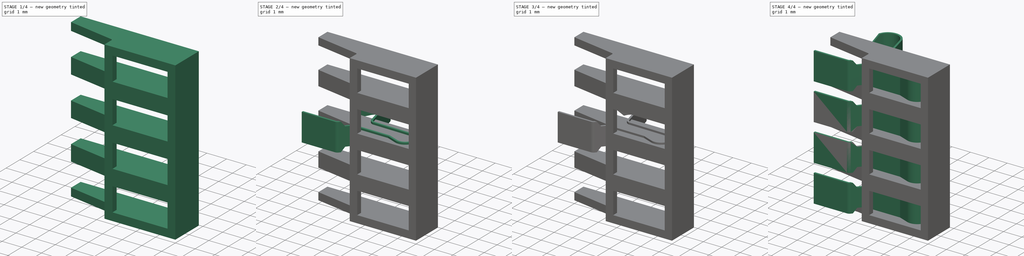
[diagram: build sequence overview — one tinted view per stage of 4, left to right]
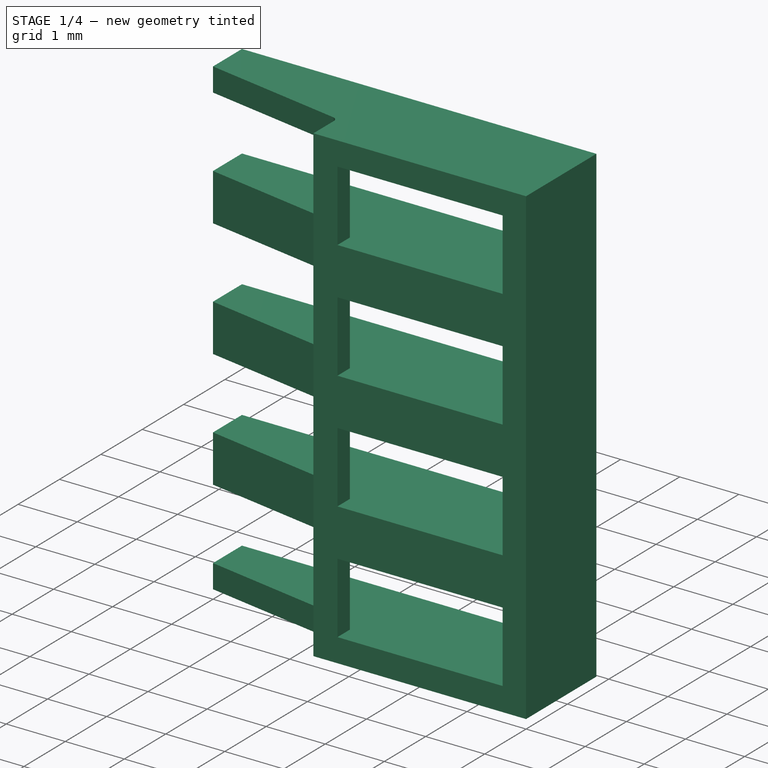
[diagram: stage 1 of 4 — iso view after this stage's code; geometry added in this stage tinted green]
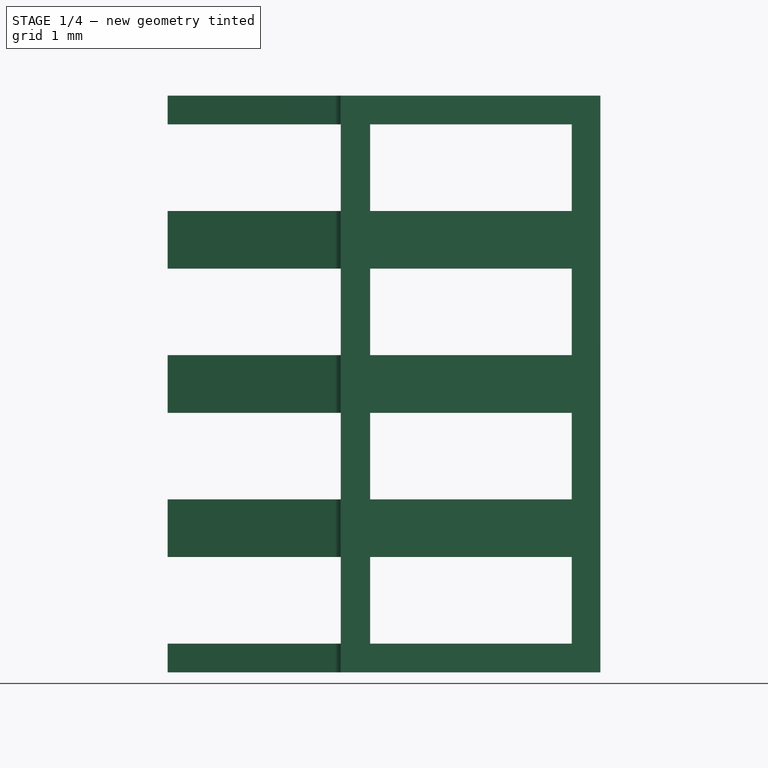
[diagram: stage 1 of 4 — front view after this stage's code; geometry added in this stage tinted green]
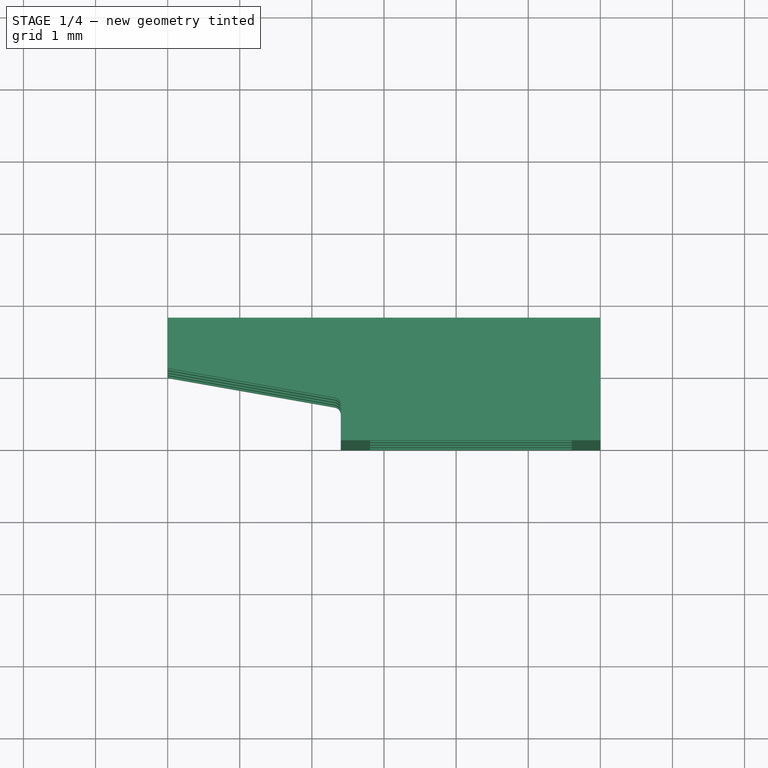
[diagram: stage 1 of 4 — top view after this stage's code; geometry added in this stage tinted green]
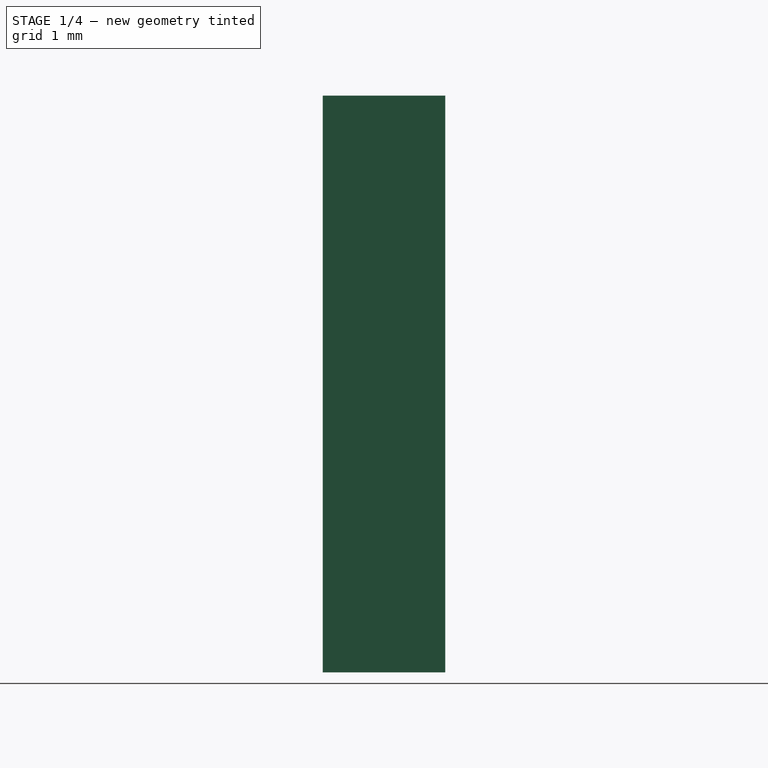
[diagram: stage 1 of 4 — right view after this stage's code; geometry added in this stage tinted green]
FCSTD DOCUMENT  (FreeCAD 1.0R38641 +468 (Git))
Label: SMT-CONN-BATTERY
License: All rights reserved
LicenseURL: http://en.wikipedia.org/wiki/All_rights_reserved
objects: Sketcher::SketchObject×6, PartDesign::Body×5, PartDesign::Pocket×3, PartDesign::FeatureBase×3, PartDesign::Pad×2, PartDesign::FeaturePython×1, PartDesign::Chamfer×1, PartDesign::Boolean×1
note: 45 computed .brp shape members not serialized (recipe doc carries the construction recipe); baked Part::Feature solids carry a one-line shape summary decoded from their .brp

FEATURE [Sketcher::SketchObject] Sketch
  ArcFitTolerance = 0
  AttachmentSupport = -> [XY_Plane]
  FullyConstrained = true
  MakeInternals = false
  MapMode = 5
  sketch-geometry (7):
    g0: LineSegment StartX=0 StartY=1.7 StartZ=0 EndX=6 EndY=1.7 EndZ=0
    g1: LineSegment StartX=6 StartY=1.7 StartZ=0 EndX=6 EndY=0 EndZ=0
    g2: LineSegment StartX=6 StartY=0 StartZ=0 EndX=2.4 EndY=0 EndZ=0
    g3: LineSegment StartX=2.4 StartY=0 StartZ=0 EndX=2.4 EndY=0.492905 EndZ=0
    g4: LineSegment StartX=2.31736 StartY=0.591386 StartZ=0 EndX=0 EndY=1 EndZ=0
    g5: LineSegment StartX=0 StartY=1 StartZ=0 EndX=0 EndY=1.7 EndZ=0
    g6: ArcOfCircle CenterX=2.3 CenterY=0.492905 CenterZ=0 NormalX=0 NormalY=0 NormalZ=1 AngleXU=0 Radius=0.1 StartAngle=1e-16 EndAngle=1.39626
  constraints (20):
    c: PointOnObject(g0,g-2)
    c: Horizontal(g0)
    c: Coincident(g0,g1)
    c: PointOnObject(g1,g-1)
    c: Vertical(g1)
    c: Coincident(g1,g2)
    c: Coincident(g2,g3)
    c: Vertical(g3)
    c: PointOnObject(g4,g-2)
    c: Coincident(g4,g5)
    c: Coincident(g5,g0)
    c: PointOnObject(g2,g-1)
    c: DistanceY(g1,g1) = 1.7
    c: DistanceX(g0,g0) = 6
    c: DistanceX(g2,g2) = 3.6
    c: Tangent(g3,g6) = -1.5708
    c: Tangent(g4,g6) = -1.5708
    c: Radius(g6) = 0.1
    c: DistanceY(g5,g5) = 0.7
    c: Angle(g4,g0) = 0.174533
FEATURE [PartDesign::Pad] Pad
  Direction = (0,0,1)
  Length = 8
  Length2 = 10
  Midplane = true
  Profile = -> Sketch
  ReferenceAxis = -> Sketch [N_Axis]
  Suppressed = false
  Type = 0
FEATURE [Sketcher::SketchObject] Sketch001
  ArcFitTolerance = 0
  AttachmentSupport = -> [XZ_Plane]
  FullyConstrained = false
  MakeInternals = false
  MapMode = 5
  Placement = pos=(0,0,0) rot=(1,0,0;1.5708rad)
  sketch-geometry (24):
    g0: LineSegment StartX=2.80704 StartY=3.6 StartZ=0 EndX=5.60429 EndY=3.6 EndZ=0
    g1: LineSegment StartX=5.60429 StartY=3.6 StartZ=0 EndX=5.60429 EndY=2.4 EndZ=0
    g2: LineSegment StartX=5.60429 StartY=2.4 StartZ=0 EndX=2.80704 EndY=2.4 EndZ=0
    g3: LineSegment StartX=2.80704 StartY=2.4 StartZ=0 EndX=2.80704 EndY=3.6 EndZ=0
    g4: LineSegment StartX=2.80704 StartY=1.6 StartZ=0 EndX=5.60429 EndY=1.6 EndZ=0
    g5: LineSegment StartX=5.60429 StartY=1.6 StartZ=0 EndX=5.60429 EndY=0.4 EndZ=0
    g6: LineSegment StartX=5.60429 StartY=0.4 StartZ=0 EndX=2.80704 EndY=0.4 EndZ=0
    g7: LineSegment StartX=2.80704 StartY=0.4 StartZ=0 EndX=2.80704 EndY=1.6 EndZ=0
    g8: LineSegment StartX=2.80704 StartY=-0.4 StartZ=0 EndX=5.60429 EndY=-0.4 EndZ=0
    g9: LineSegment StartX=5.60429 StartY=-0.4 StartZ=0 EndX=5.60429 EndY=-1.6 EndZ=0
    g10: LineSegment StartX=5.60429 StartY=-1.6 StartZ=0 EndX=2.80704 EndY=-1.6 EndZ=0
    g11: LineSegment StartX=2.80704 StartY=-1.6 StartZ=0 EndX=2.80704 EndY=-0.4 EndZ=0
    g12: LineSegment StartX=2.80704 StartY=-2.4 StartZ=0 EndX=5.60429 EndY=-2.4 EndZ=0
    g13: LineSegment StartX=5.60429 StartY=-2.4 StartZ=0 EndX=5.60429 EndY=-3.6 EndZ=0
    g14: LineSegment StartX=5.60429 StartY=-3.6 StartZ=0 EndX=2.80704 EndY=-3.6 EndZ=0
    g15: LineSegment StartX=2.80704 StartY=-3.6 StartZ=0 EndX=2.80704 EndY=-2.4 EndZ=0
    g16: LineSegment [constr] StartX=2.80704 StartY=-0.4 StartZ=0 EndX=2.80704 EndY=0 EndZ=0
    g17: LineSegment [constr] StartX=2.80704 StartY=0.4 StartZ=0 EndX=2.80704 EndY=0 EndZ=0
    g18: LineSegment [constr] StartX=2.80704 StartY=1.6 StartZ=0 EndX=2.80704 EndY=2 EndZ=0
    g19: LineSegment [constr] StartX=2.80704 StartY=2 StartZ=0 EndX=2.80704 EndY=2.4 EndZ=0
    g20: LineSegment [constr] StartX=2.80704 StartY=-2.4 StartZ=0 EndX=2.80704 EndY=-2 EndZ=0
    g21: LineSegment [constr] StartX=2.80704 StartY=-2 StartZ=0 EndX=2.80704 EndY=-1.6 EndZ=0
    g22: LineSegment [constr] StartX=2.80704 StartY=3.6 StartZ=0 EndX=2.80704 EndY=4 EndZ=0
    g23: LineSegment [constr] StartX=2.80704 StartY=-3.6 StartZ=0 EndX=2.80704 EndY=-4 EndZ=0
  constraints (67):
    c: Coincident(g0,g1)
    c: Coincident(g1,g2)
    c: Coincident(g2,g3)
    c: Coincident(g3,g0)
    c: Horizontal(g0)
    c: Horizontal(g2)
    c: Vertical(g1)
    c: Vertical(g3)
    c: Coincident(g4,g5)
    c: Coincident(g5,g6)
    c: Coincident(g6,g7)
    c: Coincident(g7,g4)
    c: Horizontal(g4)
    c: Horizontal(g6)
    c: Vertical(g5)
    c: Vertical(g7)
    c: Coincident(g8,g9)
    c: Coincident(g9,g10)
    c: Coincident(g10,g11)
    c: Coincident(g11,g8)
    c: Horizontal(g8)
    c: Horizontal(g10)
    c: Vertical(g9)
    c: Vertical(g11)
    c: Coincident(g12,g13)
    c: Coincident(g13,g14)
    c: Coincident(g14,g15)
    c: Coincident(g15,g12)
    c: Horizontal(g12)
    c: Horizontal(g14)
    c: Vertical(g13)
    c: Vertical(g15)
    c: Equal(g13,g9)
    c: Equal(g9,g5)
    c: Equal(g5,g1)
    c: Equal(g2,g6)
    c: Equal(g6,g10)
    c: Equal(g10,g14)
    c: DistanceY(g13,g13) = 1.2
    c: Coincident(g16,g8)
    c: PointOnObject(g16,g-1)
    c: Coincident(g17,g6)
    c: Coincident(g17,g16)
    c: Vertical(g16)
    c: Vertical(g17)
    c: Coincident(g4,g18)
    c: Vertical(g18)
    c: Coincident(g18,g19)
    c: Coincident(g19,g2)
    c: Vertical(g19)
    c: Coincident(g12,g20)
    c: Vertical(g20)
    c: Coincident(g20,g21)
    c: Coincident(g21,g10)
    c: Vertical(g21)
    c: Equal(g21,g20)
    c: Equal(g20,g16)
    c: Equal(g16,g17)
    c: Equal(g17,g18)
    c: Equal(g18,g19)
    c: Coincident(g22,g0)
    c: Vertical(g22)
    c: Coincident(g23,g14)
    c: Vertical(g23)
    c: Equal(g23,g21)
    c: Equal(g21,g22)
    c: DistanceY(g23,g22) = 8
FEATURE [PartDesign::Pocket] Pocket
  BaseFeature = -> Pad
  Direction = (0,1,-2e-16)
  Length = 5
  Length2 = 5
  Profile = -> Sketch001
  ReferenceAxis = -> Sketch001 [N_Axis]
  Suppressed = false
  Type = 1
FEATURE [PartDesign::Body] Body004  label="Spring4"
  AllowCompound = false
  BaseFeature = -> Body001
  Group = -> [Clone002]
  Origin = -> Origin004
  Placement = pos=(0,0,3) rot=(0,0,1;0rad)
  Tip = -> Clone002
FEATURE [PartDesign::Pocket] Pocket001
  BaseFeature = -> Pocket
  Direction = (1,0,0)
  Length = 5
  Length2 = 5
  Profile = -> Sketch002
  ReferenceAxis = -> Sketch002 [N_Axis]
  Suppressed = false
  Type = 0
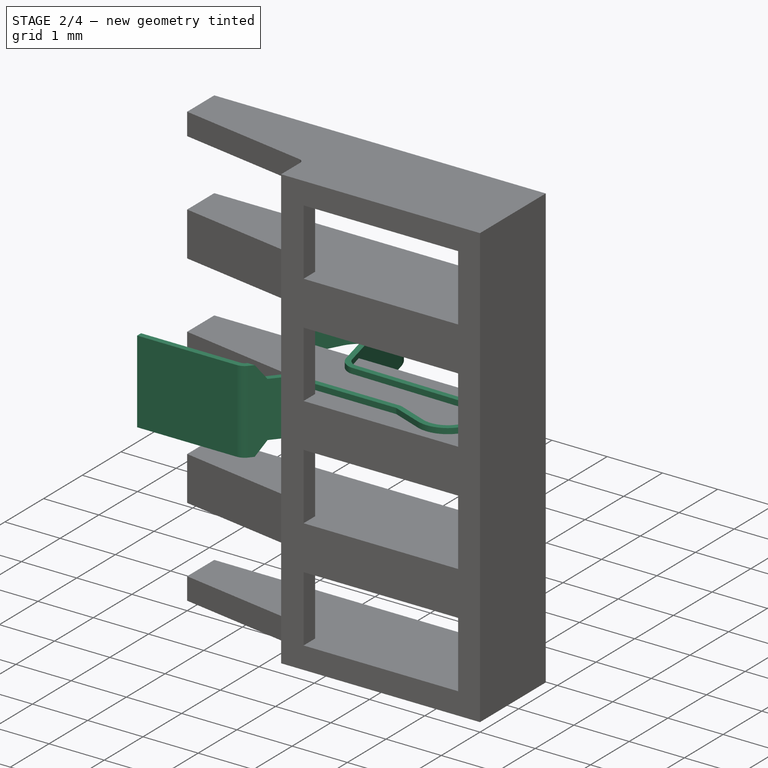
[diagram: stage 2 of 4 — iso view after this stage's code; geometry added in this stage tinted green]
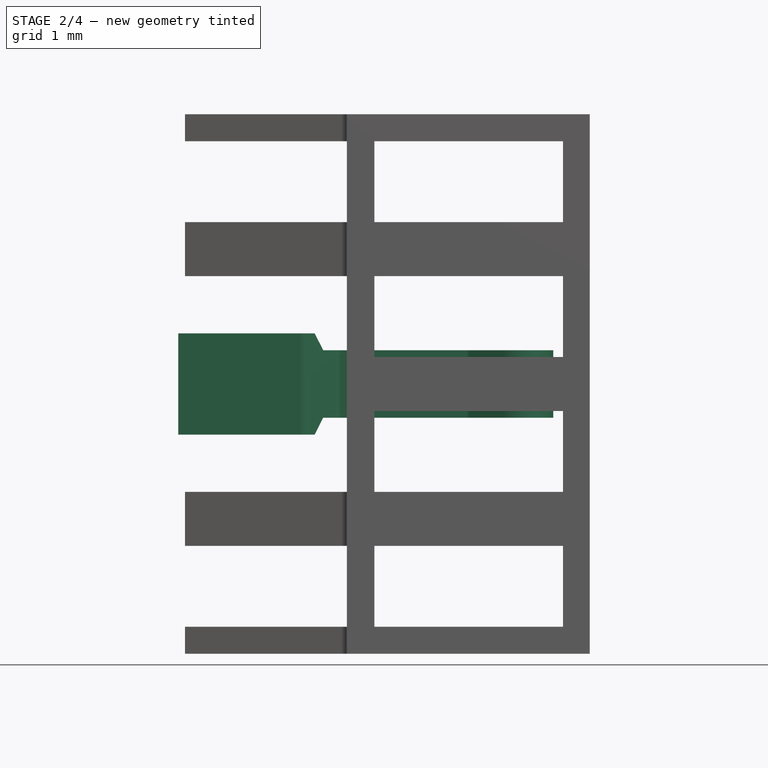
[diagram: stage 2 of 4 — front view after this stage's code; geometry added in this stage tinted green]
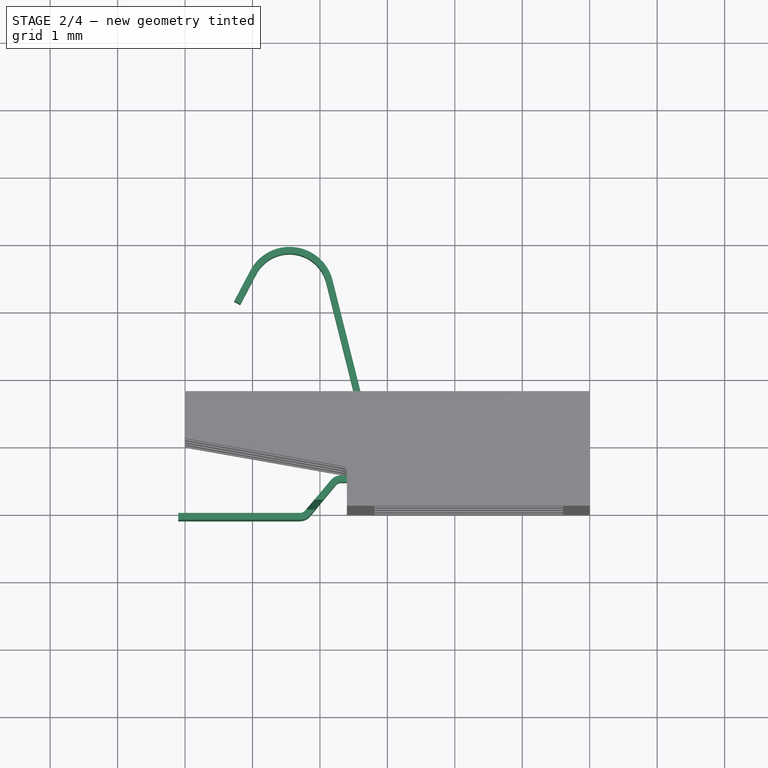
[diagram: stage 2 of 4 — top view after this stage's code; geometry added in this stage tinted green]
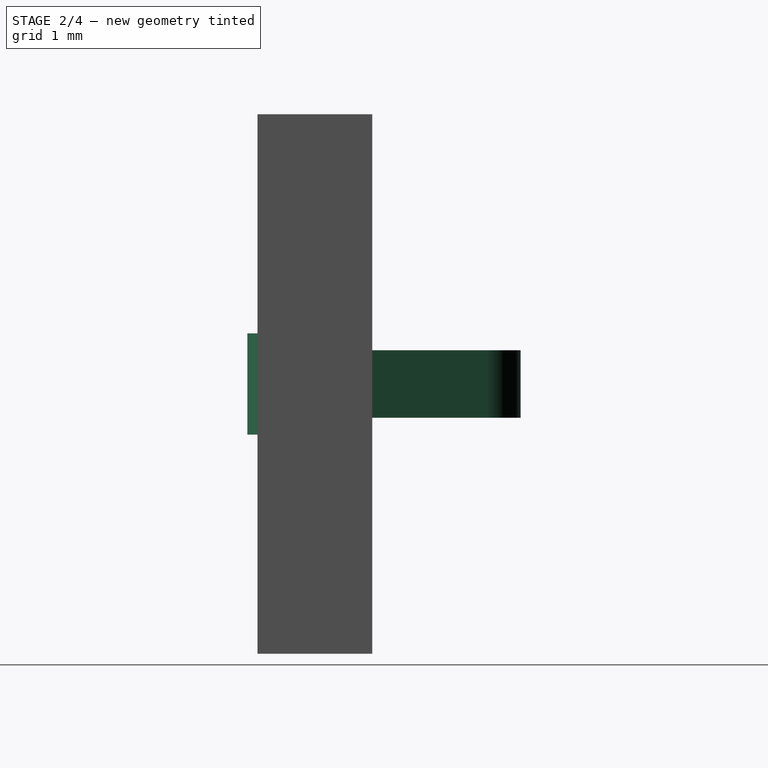
[diagram: stage 2 of 4 — right view after this stage's code; geometry added in this stage tinted green]
FEATURE [Sketcher::SketchObject] Sketch002
  ArcFitTolerance = 0
  AttachmentSupport = -> [YZ_Plane]
  FullyConstrained = true
  MakeInternals = false
  MapMode = 5
  Placement = pos=(0,0,0) rot=(0.57735,-0.57735,-0.57735;2.0944rad)
  sketch-geometry (24):
    g0: LineSegment StartX=-3.3 StartY=3.6 StartZ=0 EndX=-0.3 EndY=3.6 EndZ=0
    g1: LineSegment StartX=-0.3 StartY=3.6 StartZ=0 EndX=-0.3 EndY=2.4 EndZ=0
    g2: LineSegment StartX=-0.3 StartY=2.4 StartZ=0 EndX=-3.3 EndY=2.4 EndZ=0
    g3: LineSegment StartX=-3.3 StartY=2.4 StartZ=0 EndX=-3.3 EndY=3.6 EndZ=0
    g4: LineSegment StartX=-3.3 StartY=1.6 StartZ=0 EndX=-0.3 EndY=1.6 EndZ=0
    g5: LineSegment StartX=-0.3 StartY=1.6 StartZ=0 EndX=-0.3 EndY=0.4 EndZ=0
    g6: LineSegment StartX=-0.3 StartY=0.4 StartZ=0 EndX=-3.3 EndY=0.4 EndZ=0
    g7: LineSegment StartX=-3.3 StartY=0.4 StartZ=0 EndX=-3.3 EndY=1.6 EndZ=0
    g8: LineSegment StartX=-3.3 StartY=-0.4 StartZ=0 EndX=-0.3 EndY=-0.4 EndZ=0
    g9: LineSegment StartX=-0.3 StartY=-0.4 StartZ=0 EndX=-0.3 EndY=-1.6 EndZ=0
    g10: LineSegment StartX=-0.3 StartY=-1.6 StartZ=0 EndX=-3.3 EndY=-1.6 EndZ=0
    g11: LineSegment StartX=-3.3 StartY=-1.6 StartZ=0 EndX=-3.3 EndY=-0.4 EndZ=0
    g12: LineSegment StartX=-3.3 StartY=-2.4 StartZ=0 EndX=-0.3 EndY=-2.4 EndZ=0
    g13: LineSegment StartX=-0.3 StartY=-2.4 StartZ=0 EndX=-0.3 EndY=-3.6 EndZ=0
    g14: LineSegment StartX=-0.3 StartY=-3.6 StartZ=0 EndX=-3.3 EndY=-3.6 EndZ=0
    g15: LineSegment StartX=-3.3 StartY=-3.6 StartZ=0 EndX=-3.3 EndY=-2.4 EndZ=0
    g16: LineSegment [constr] StartX=-3.3 StartY=1.6 StartZ=0 EndX=-3.3 EndY=2 EndZ=0
    g17: LineSegment [constr] StartX=-3.3 StartY=2 StartZ=0 EndX=-3.3 EndY=2.4 EndZ=0
    g18: LineSegment [constr] StartX=-3.3 StartY=3.6 StartZ=0 EndX=-3.3 EndY=4 EndZ=0
    g19: LineSegment [constr] StartX=-3.3 StartY=0.4 StartZ=0 EndX=-3.3 EndY=0 EndZ=0
    g20: LineSegment [constr] StartX=-3.3 StartY=0 StartZ=0 EndX=-3.3 EndY=-0.4 EndZ=0
    g21: LineSegment [constr] StartX=-3.3 StartY=-3.6 StartZ=0 EndX=-3.3 EndY=-4 EndZ=0
    g22: LineSegment [constr] StartX=-3.3 StartY=-1.6 StartZ=0 EndX=-3.3 EndY=-2 EndZ=0
    g23: LineSegment [constr] StartX=-3.3 StartY=-2 StartZ=0 EndX=-3.3 EndY=-2.4 EndZ=0
  constraints (69):
    c: Coincident(g0,g1)
    c: Coincident(g1,g2)
    c: Coincident(g2,g3)
    c: Coincident(g3,g0)
    c: Horizontal(g0)
    c: Horizontal(g2)
    c: Vertical(g1)
    c: Vertical(g3)
    c: Coincident(g4,g5)
    c: Coincident(g5,g6)
    c: Coincident(g6,g7)
    c: Coincident(g7,g4)
    c: Horizontal(g4)
    c: Horizontal(g6)
    c: Vertical(g5)
    c: Vertical(g7)
    c: Coincident(g8,g9)
    c: Coincident(g9,g10)
    c: Coincident(g10,g11)
    c: Coincident(g11,g8)
    c: Horizontal(g8)
    c: Horizontal(g10)
    c: Vertical(g9)
    c: Vertical(g11)
    c: Coincident(g12,g13)
    c: Coincident(g13,g14)
    c: Coincident(g14,g15)
    c: Coincident(g15,g12)
    c: Horizontal(g12)
    c: Horizontal(g14)
    c: Vertical(g13)
    c: Vertical(g15)
    c: Coincident(g16,g4)
    c: Vertical(g16)
    c: Coincident(g17,g16)
    c: Coincident(g17,g2)
    c: Vertical(g17)
    c: Coincident(g18,g0)
    c: Vertical(g18)
    c: Coincident(g19,g6)
    c: PointOnObject(g19,g-1)
    c: Vertical(g19)
    c: Coincident(g20,g19)
    c: Vertical(g20)
    c: Coincident(g8,g20)
    c: Coincident(g21,g14)
    c: Vertical(g21)
    c: Coincident(g10,g22)
    c: Coincident(g22,g23)
    c: Coincident(g23,g12)
    c: Vertical(g23)
    c: Vertical(g22)
    c: Equal(g16,g17)
    c: Equal(g17,g18)
    c: Equal(g18,g19)
    c: Equal(g19,g20)
    c: Equal(g20,g21)
    c: Equal(g21,g22)
    c: Equal(g22,g23)
    c: Equal(g15,g11)
    c: Equal(g11,g7)
    c: Equal(g7,g3)
    c: DistanceY(g3,g3) = 1.2
    c: DistanceY(g21,g18) = 8
    c: Equal(g14,g10)
    c: Equal(g10,g6)
    c: Equal(g6,g2)
    c: DistanceX(g0,g0) = 3
    c: DistanceX(g0,g-1) = 0.3
FEATURE [Sketcher::SketchObject] Sketch003
  ArcFitTolerance = 0
  AttachmentSupport = -> [XY_Plane001]
  FullyConstrained = false
  MakeInternals = false
  MapMode = 5
  expr: Constraints[17] = 1.7 + 2.2 - 0.1
  expr: Constraints[18] = 6 - 4.45
  sketch-geometry (12):
    g0: LineSegment StartX=-0.1 StartY=-0.05 StartZ=0 EndX=1.75 EndY=-0.05 EndZ=0
    g1: LineSegment StartX=1.75 StartY=-0.05 StartZ=0 EndX=2.22052 EndY=0.512776 EndZ=0
    g2: LineSegment StartX=2.22052 StartY=0.512776 StartZ=0 EndX=4.21401 EndY=0.512776 EndZ=0
    g3: LineSegment StartX=4.21401 StartY=0.512776 StartZ=0 EndX=4.75779 EndY=0.304165 EndZ=0
    g4: ArcOfCircle CenterX=4.91632 CenterY=0.717387 CenterZ=0 NormalX=0 NormalY=0 NormalZ=1 AngleXU=0 Radius=0.442586 StartAngle=4.34607 EndAngle=7.83893
    g5: LineSegment StartX=4.92298 StartY=1.15992 StartZ=0 EndX=2.82491 EndY=1.19151 EndZ=0
    g6: ArcOfCircle CenterX=2.88221 CenterY=1.49414 CenterZ=0 NormalX=0 NormalY=0 NormalZ=1 AngleXU=0 Radius=0.308006 StartAngle=3.38751 EndAngle=4.52524
    g7: LineSegment StartX=2.58347 StartY=1.41915 StartZ=0 EndX=2.09201 EndY=3.37722 EndZ=0
    g8: LineSegment StartX=1.05581 StartY=3.50205 StartZ=0 EndX=0.81791 EndY=3.05139 EndZ=0
    g9: ArcOfCircle CenterX=1.55 CenterY=3.24118 CenterZ=0 NormalX=0 NormalY=0 NormalZ=1 AngleXU=0 Radius=0.558824 StartAngle=1.5708 EndAngle=2.65589
    g10: ArcOfCircle CenterX=1.55 CenterY=3.24118 CenterZ=0 NormalX=0 NormalY=0 NormalZ=1 AngleXU=0 Radius=0.558824 StartAngle=0.245914 EndAngle=1.5708
    g11: LineSegment [constr] StartX=1.55 StartY=3.24118 StartZ=0 EndX=1.55 EndY=3.8 EndZ=0
  constraints (21):
    c: Horizontal(g0)
    c: DistanceX(g0,g-1) = 0.1
    c: DistanceY(g0,g-1) = 0.05
    c: DistanceX(g0,g0) = 1.85
    c: Coincident(g0,g1)
    c: Coincident(g1,g2)
    c: Horizontal(g2)
    c: Coincident(g2,g3)
    c: Coincident(g6,g5)
    c: Tangent(g6,g7) = 1.5708
    c: Coincident(g10,g9)
    c: Tangent(g9,g8) = -1.5708
    c: Tangent(g10,g7) = -1.5708
    c: Coincident(g11,g9)
    c: Coincident(g11,g9)
    c: Vertical(g11)
    c: Coincident(g9,g10)
    c: DistanceY(g-1,g9) = 3.8
    c: DistanceX(g-1,g9) = 1.55
    c: Tangent(g5,g4) = -1.5708
    c: Tangent(g4,g3) = -1.5708
FEATURE [PartDesign::FeaturePython] BaseBend  # WARN: FeaturePython — macro-defined, semantics opaque (R4)
  BendSide = 0
  BendSketch = -> Sketch003
  MidPlane = true
  Reverse = false
  Suppressed = false
  length = 1.5
  radius = 0.1
  thickness = 0.1
FEATURE [Sketcher::SketchObject] Sketch004
  ArcFitTolerance = 0
  AttachmentSupport = -> [YZ_Plane001]
  FullyConstrained = false
  MakeInternals = false
  MapMode = 5
  Placement = pos=(0,0,0) rot=(0.57735,0.57735,0.57735;2.0944rad)
  sketch-geometry (12):
    g0: LineSegment StartX=0 StartY=0.75 StartZ=0 EndX=0.151585 EndY=0.5 EndZ=0
    g1: LineSegment StartX=0.151585 StartY=0.5 StartZ=0 EndX=4.5 EndY=0.5 EndZ=0
    g2: LineSegment StartX=4.5 StartY=0.5 StartZ=0 EndX=4.5 EndY=-0.5 EndZ=0
    g3: LineSegment StartX=4.5 StartY=-0.5 StartZ=0 EndX=0.151585 EndY=-0.5 EndZ=0
    g4: LineSegment StartX=0.151585 StartY=-0.5 StartZ=0 EndX=0 EndY=-0.75 EndZ=0
    g5: LineSegment StartX=0 StartY=-0.75 StartZ=0 EndX=0 EndY=-2 EndZ=0
    g6: LineSegment StartX=0 StartY=-2 StartZ=0 EndX=5 EndY=-2 EndZ=0
    g7: LineSegment StartX=5 StartY=-2 StartZ=0 EndX=5 EndY=2 EndZ=0
    g8: LineSegment StartX=5 StartY=2 StartZ=0 EndX=0 EndY=2 EndZ=0
    g9: LineSegment StartX=0 StartY=2 StartZ=0 EndX=0 EndY=0.75 EndZ=0
    g10: LineSegment [constr] StartX=0 StartY=0 StartZ=0 EndX=4.5 EndY=0.5 EndZ=0
    g11: LineSegment [constr] StartX=4.5 StartY=-0.5 StartZ=0 EndX=0 EndY=0 EndZ=0
  constraints (33):
    c: PointOnObject(g9,g-2)
    c: Coincident(g0,g1)
    c: Horizontal(g1)
    c: Coincident(g1,g2)
    c: Vertical(g2)
    c: Coincident(g2,g3)
    c: Horizontal(g3)
    c: Coincident(g3,g4)
    c: PointOnObject(g5,g-2)
    c: Coincident(g5,g6)
    c: Horizontal(g6)
    c: Coincident(g6,g7)
    c: Vertical(g7)
    c: Coincident(g7,g8)
    c: PointOnObject(g8,g-2)
    c: Horizontal(g8)
    c: Coincident(g8,g9)
    c: Equal(g5,g9)
    c: Equal(g1,g3)
    c: Coincident(g-1,g10)
    c: Coincident(g10,g1)
    c: Coincident(g2,g11)
    c: Coincident(g11,g10)
    c: Equal(g11,g10)
    c: DistanceY(g2,g2) = 1
    c: DistanceX(g10,g1) = 4.5
    c: DistanceX(g8,g8) = 5
    c: Equal(g4,g0)
    c: DistanceY(g5,g9) = 1.5
    c: DistanceY(g7,g7) = 4
    c: Coincident(g0,g9)
    c: Coincident(g5,g4)
    c: PointOnObject(g4,g-2)
FEATURE [PartDesign::Pocket] Pocket002
  BaseFeature = -> BaseBend
  Direction = (-1,0,0)
  Length = 5
  Length2 = 5
  Midplane = true
  Profile = -> Sketch004
  ReferenceAxis = -> Sketch004 [N_Axis]
  Suppressed = false
  Type = 1
FEATURE [Sketcher::SketchObject] Sketch005
  ArcFitTolerance = 0
  AttachmentSupport = -> [XY_Plane]
  FullyConstrained = true
  MakeInternals = false
  MapMode = 5
  sketch-geometry (1):
    g0: Circle CenterX=2.5 CenterY=0.46 CenterZ=0 NormalX=0 NormalY=0 NormalZ=1 AngleXU=0 Radius=0.05
  constraints (3):
    c: DistanceY(g-1,g0) = 0.46
    c: DistanceX(g-1,g0) = 2.5
    c: Diameter(g0) = 0.1
FEATURE [PartDesign::Pad] Pad001
  BaseFeature = -> Pocket001
  Direction = (0,0,1)
  Length = 8
  Length2 = 10
  Midplane = true
  Profile = -> Sketch005
  ReferenceAxis = -> Sketch005 [N_Axis]
  Refine = true
  Suppressed = false
  Type = 0
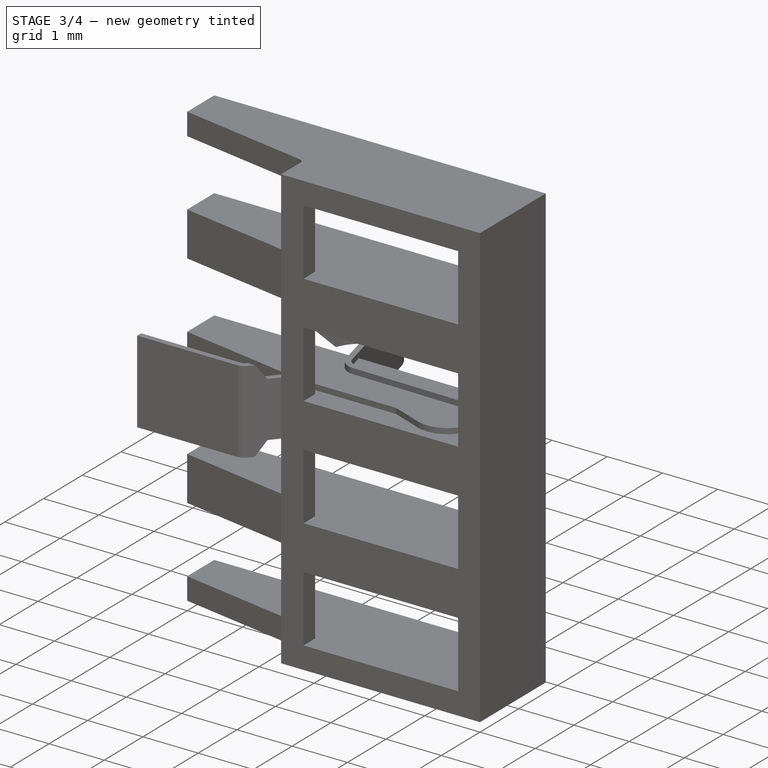
[diagram: stage 3 of 4 — iso view after this stage's code; geometry added in this stage tinted green]
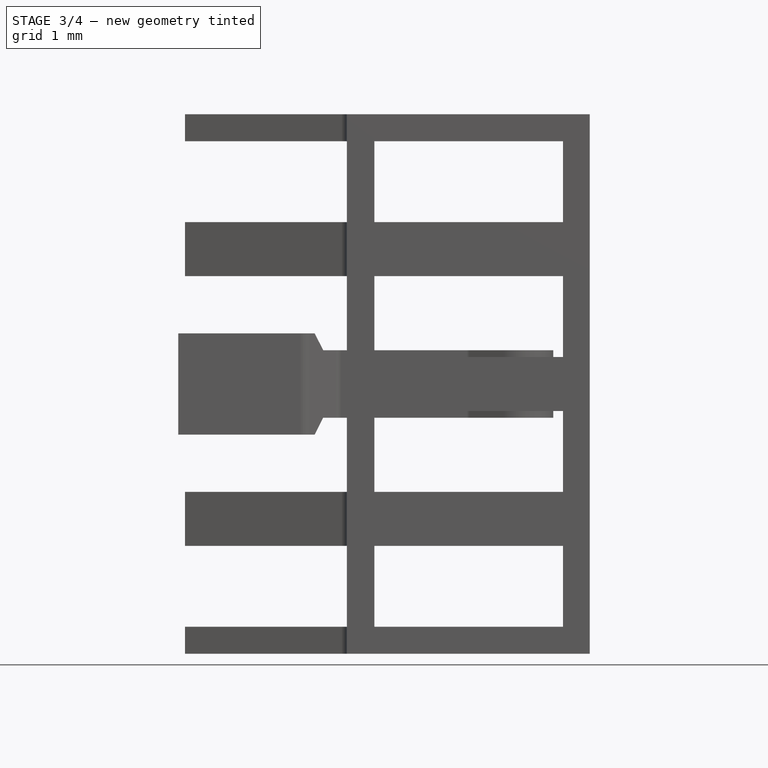
[diagram: stage 3 of 4 — front view after this stage's code; geometry added in this stage tinted green]
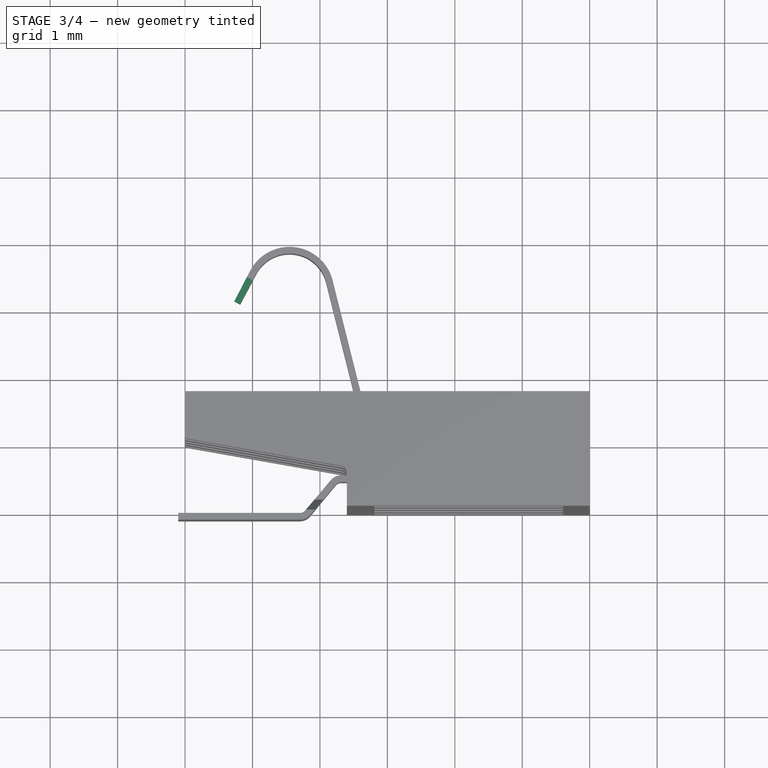
[diagram: stage 3 of 4 — top view after this stage's code; geometry added in this stage tinted green]
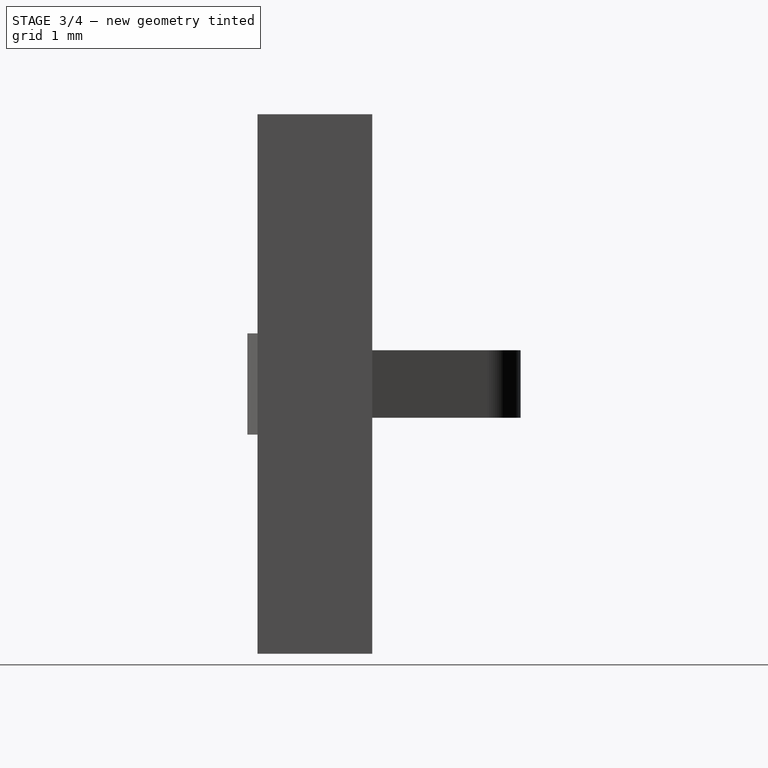
[diagram: stage 3 of 4 — right view after this stage's code; geometry added in this stage tinted green]
FEATURE [PartDesign::Chamfer] Chamfer
  Angle = 45
  Base = -> Pocket002 [Edge18,Edge33]
  BaseFeature = -> Pocket002
  ChamferType = 0
  FlipDirection = false
  Size = 0.4
  Size2 = 1
  SupportTransform = false
  Suppressed = false
  UseAllEdges = false
FEATURE [PartDesign::Body] Body003  label="Spring3"
  AllowCompound = false
  BaseFeature = -> Body001
  Group = -> [Clone001]
  Origin = -> Origin003
  Placement = pos=(0,0,1) rot=(0,0,1;0rad)
  Tip = -> Clone001
FEATURE [PartDesign::FeatureBase] Clone002
  BaseFeature = -> Body001
  Suppressed = false
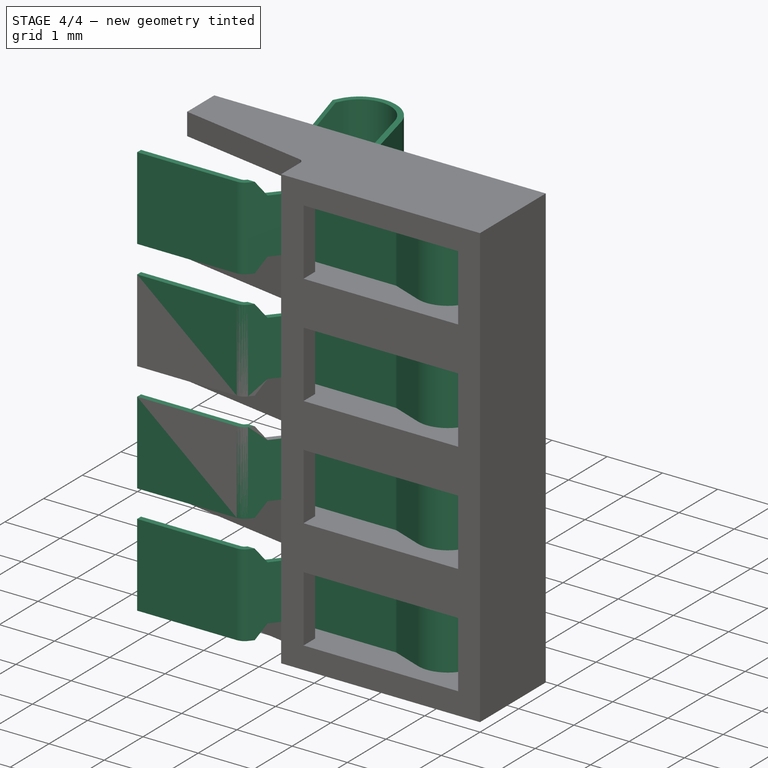
[diagram: stage 4 of 4 — iso view after this stage's code; geometry added in this stage tinted green]
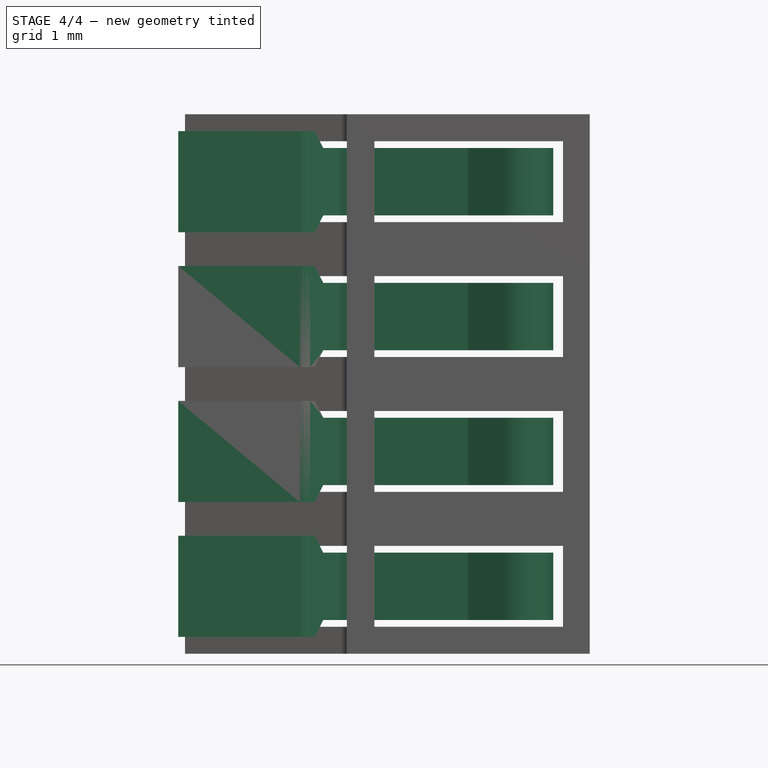
[diagram: stage 4 of 4 — front view after this stage's code; geometry added in this stage tinted green]
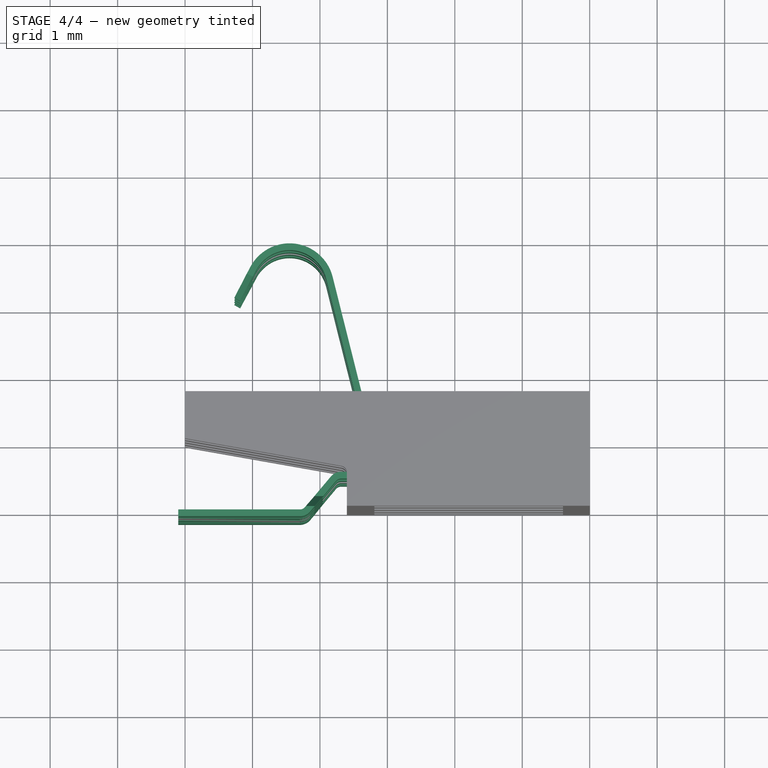
[diagram: stage 4 of 4 — top view after this stage's code; geometry added in this stage tinted green]
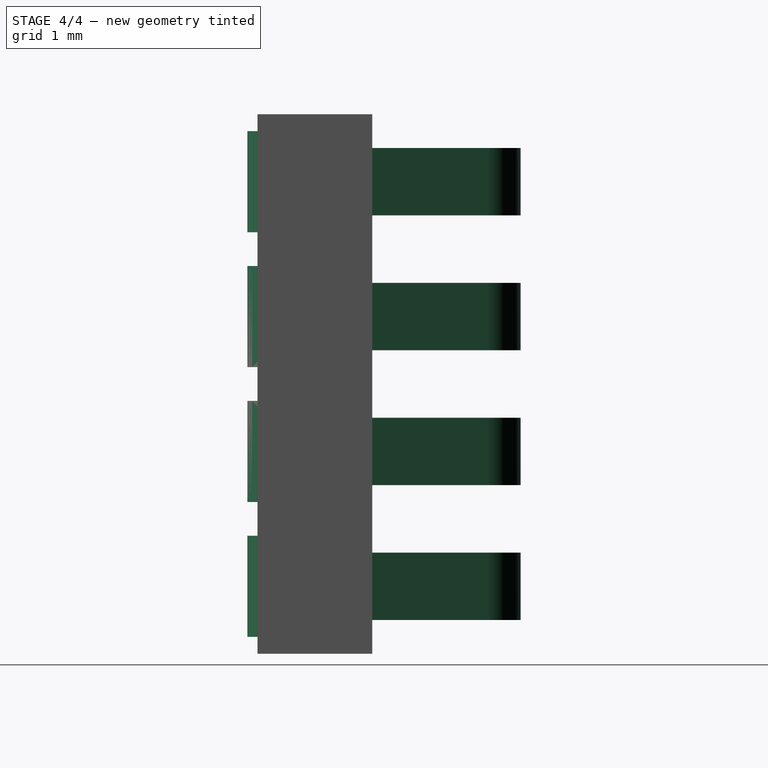
[diagram: stage 4 of 4 — right view after this stage's code; geometry added in this stage tinted green]
FEATURE [PartDesign::Body] Body001  label="Spring_original"
  AllowCompound = false
  Group = -> [Sketch003,BaseBend,Sketch004,Pocket002,Chamfer]
  Origin = -> Origin001
  Placement = pos=(0,0,-3) rot=(0,0,1;0rad)
  Tip = -> Chamfer
FEATURE [PartDesign::FeatureBase] Clone
  BaseFeature = -> Body001
  Suppressed = false
FEATURE [PartDesign::Body] Body002  label="Spring2"
  AllowCompound = false
  BaseFeature = -> Body001
  Group = -> [Clone]
  Origin = -> Origin002
  Placement = pos=(0,0,-1) rot=(0,0,1;0rad)
  Tip = -> Clone
FEATURE [PartDesign::FeatureBase] Clone001
  BaseFeature = -> Body001
  Suppressed = false
FEATURE [PartDesign::Boolean] Boolean
  BaseFeature = -> Pad001
  Group = -> [Body001,Body002,Body003,Body004]
  Suppressed = false
  Type = 0
  UsePlacement = false
FEATURE [PartDesign::Body] Body  label="SMT-CONN-BATTERY"
  AllowCompound = false
  Group = -> [Sketch,Pad,Sketch001,Pocket,Sketch002,Pocket001,Sketch005,Pad001,Boolean]
  Origin = -> Origin
  Tip = -> Boolean
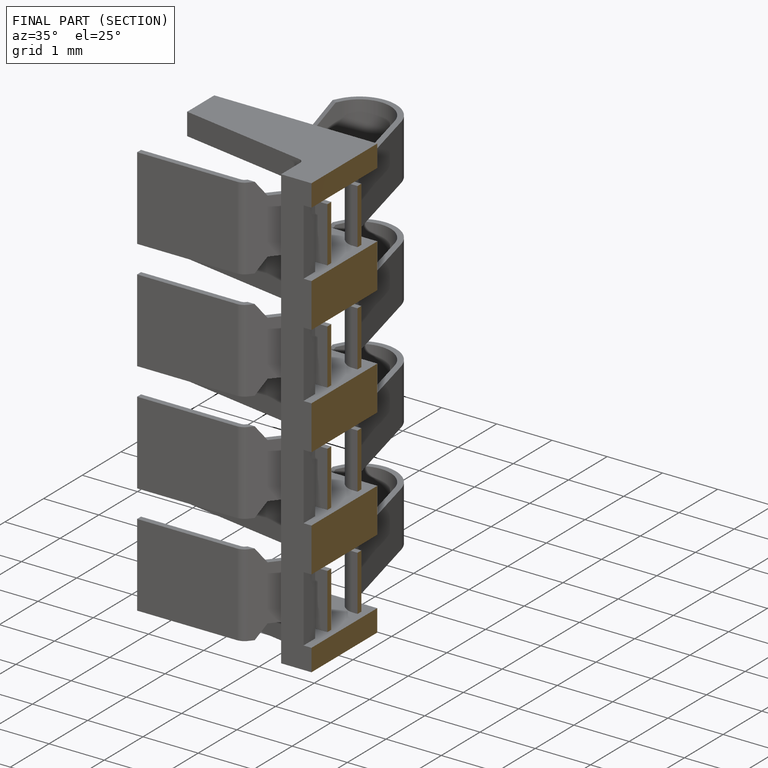
[diagram: finished part — half-section view (interior)]
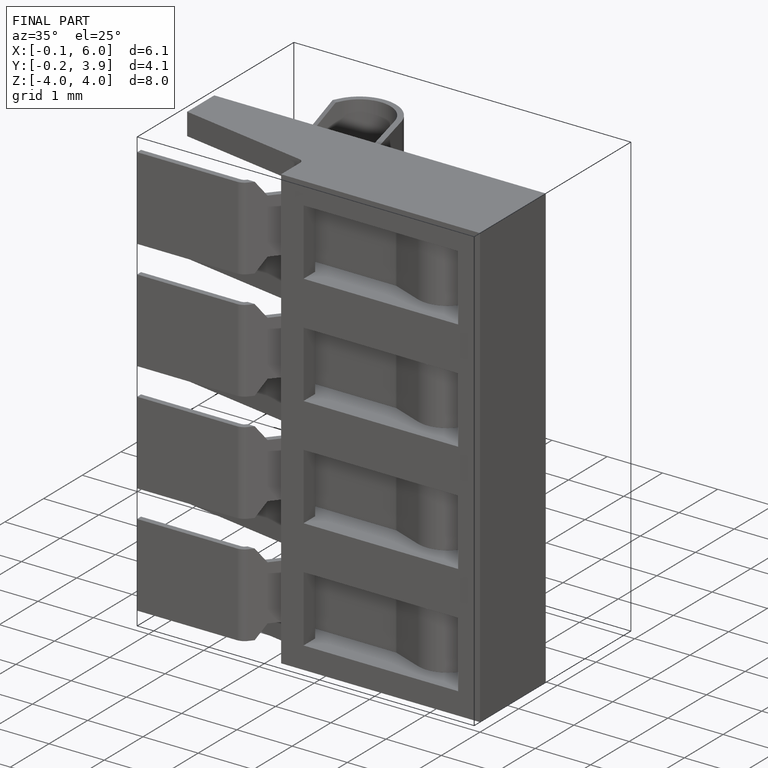
[diagram: finished part — iso view with bounding-box wireframe]
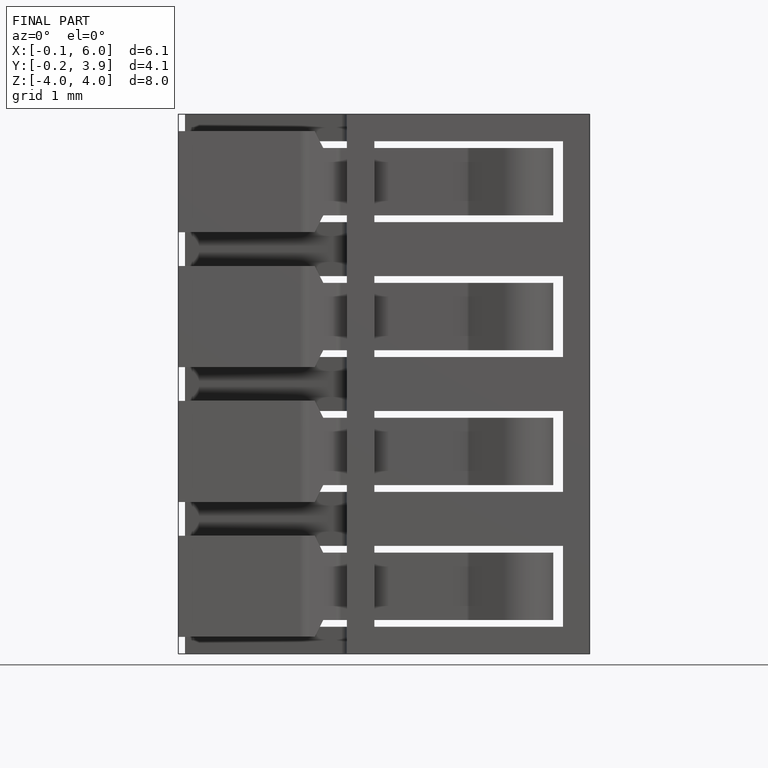
[diagram: finished part — front view with bounding-box wireframe]
